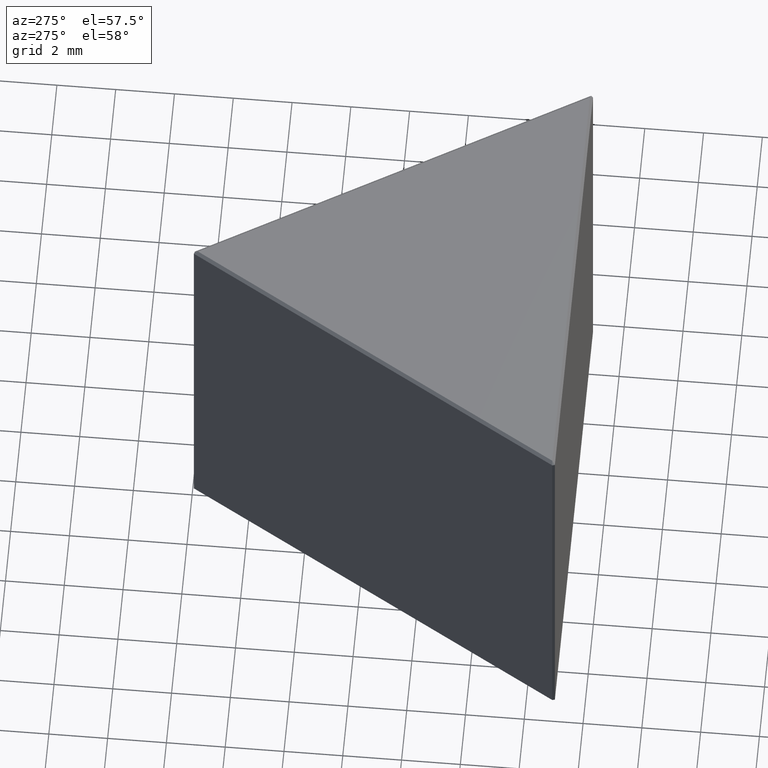
[diagram: clean part render]
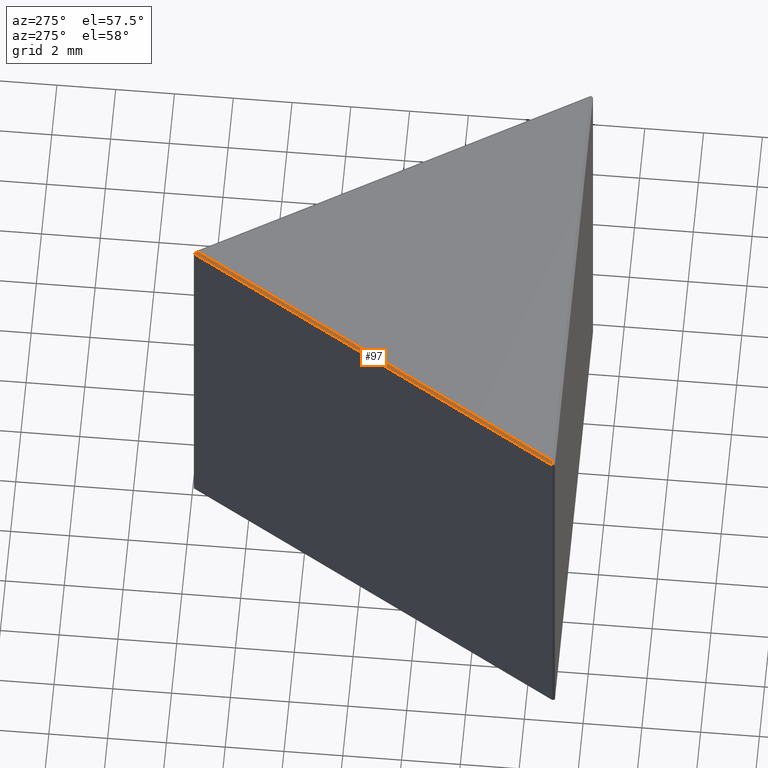
[diagram: same view with one face highlighted and labeled with its STEP entity id]
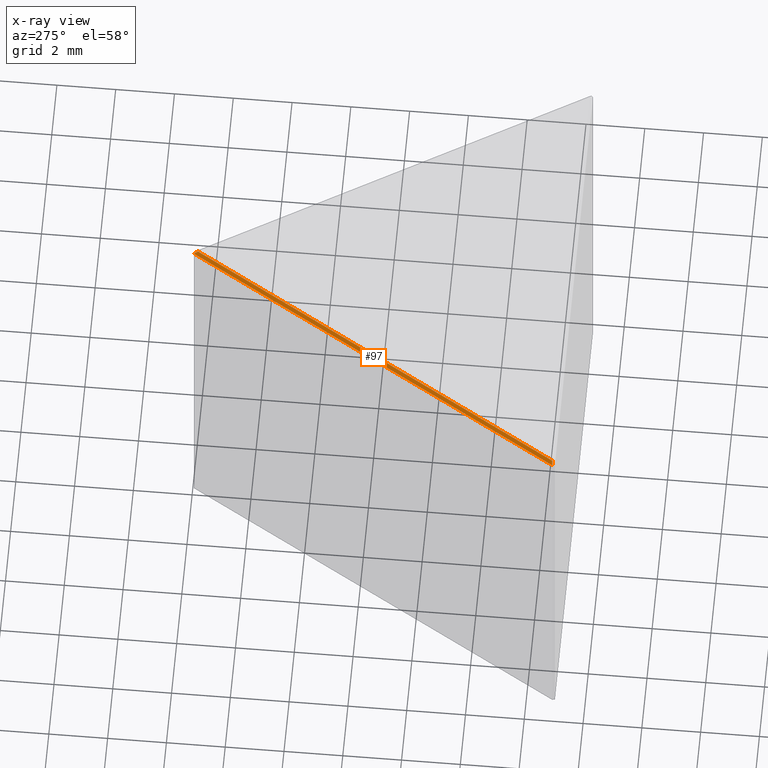
[diagram: x-ray of the same camera — body ghosted, the highlighted face saturated]
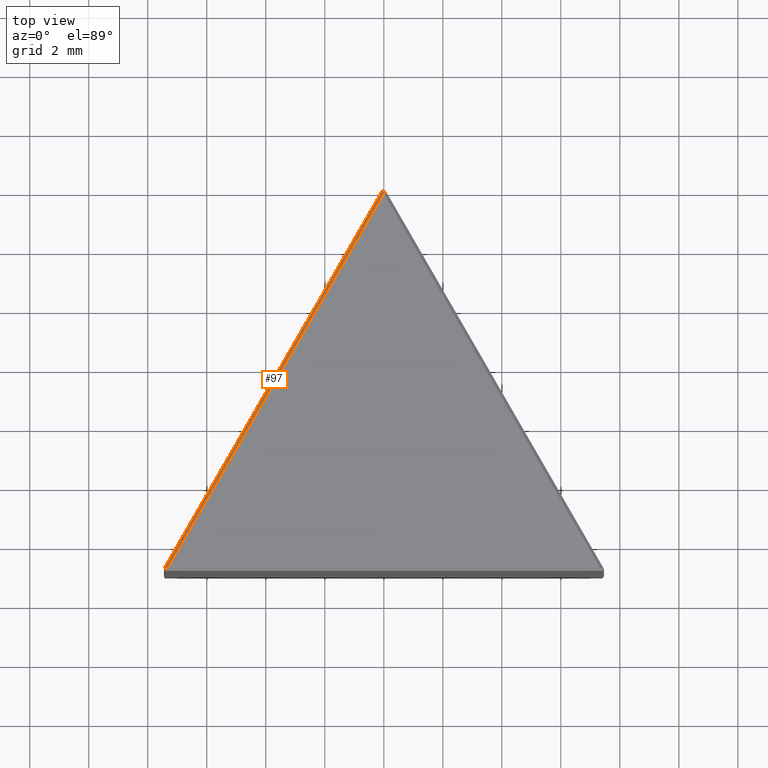
[diagram: same view with one face highlighted and labeled with its STEP entity id]
A machine part, auxiliary view. The second image highlights one B-rep face of the part: STEP entity #97.
The next image is the same camera in x-ray: the body ghosted, the highlighted face saturated — about 0% of this face is hidden behind the body in this view.
A second angle (top view) of the same face is appended — the face is thin or edge-on in the first view.
In plain terms, the highlighted planar face has unit normal (-0.6124, 0.3536, 0.7071).
Its self-contained STEP definition (entity closure, byte-faithful):
#3 = VERTEX_POINT ( 'NONE', #95 ) ;
#20 = PLANE ( 'NONE',  #133 ) ;
#43 = CARTESIAN_POINT ( 'NONE',  ( -0.02886751345948138092, -0.09226497308103918937, 14.92113248654052349 ) ) ;
#60 = DIRECTION ( 'NONE',  ( 0.5000000000000000000, 0.8660254037844385966, -0.000000000000000000 ) ) ;
#63 = VECTOR ( 'NONE', #317, 1000.000000000000000 ) ;
#91 = VERTEX_POINT ( 'NONE', #223 ) ;
#95 = CARTESIAN_POINT ( 'NONE',  ( -7.449999999999999289, -12.90377851638813311, 14.90000000000000391 ) ) ;
#97 = ADVANCED_FACE ( 'NONE', ( #375 ), #20, .T. ) ;
#110 = EDGE_LOOP ( 'NONE', ( #389, #434, #385, #258 ) ) ;
#133 = AXIS2_PLACEMENT_3D ( 'NONE', #139, #297, #60 ) ;
#134 = LINE ( 'NONE', #43, #63 ) ;
#139 = CARTESIAN_POINT ( 'NONE',  ( 0.08660254037843956310, -0.04999999999999752559, 15.00000000000000000 ) ) ;
#151 = VECTOR ( 'NONE', #386, 999.9999999999998863 ) ;
#156 = VERTEX_POINT ( 'NONE', #271 ) ;
#159 = VECTOR ( 'NONE', #396, 1000.000000000000114 ) ;
#167 = EDGE_CURVE ( 'NONE', #3, #156, #490, .T. ) ;
#170 = CARTESIAN_POINT ( 'NONE',  ( 7.002976905571655370E-16, -0.1999999999999912959, 15.00000000000000000 ) ) ;
#192 = EDGE_CURVE ( 'NONE', #3, #91, #272, .T. ) ;
#223 = CARTESIAN_POINT ( 'NONE',  ( -7.326794919243119431, -12.89038105676658219, 15.00000000000000000 ) ) ;
#242 = CARTESIAN_POINT ( 'NONE',  ( -7.413397459621560159, -13.04038105676657544, 15.00000000000000000 ) ) ;
#258 = ORIENTED_EDGE ( 'NONE', *, *, #167, .F. ) ;
#271 = CARTESIAN_POINT ( 'NONE',  ( -0.03660254037844470204, -0.06339745962155758641, 14.90000000000000391 ) ) ;
#272 = LINE ( 'NONE', #427, #151 ) ;
#276 = DIRECTION ( 'NONE',  ( 0.5000000000000001110, 0.8660254037844387076, 0.000000000000000000 ) ) ;
#297 = DIRECTION ( 'NONE',  ( -0.6123724356957973569, 0.3535533905932753962, 0.7071067811865443531 ) ) ;
#303 = VECTOR ( 'NONE', #276, 999.9999999999998863 ) ;
#310 = EDGE_CURVE ( 'NONE', #482, #91, #320, .T. ) ;
#317 = DIRECTION ( 'NONE',  ( 0.2113248654052017617, -0.7886751345948004310, 0.5773502691896373884 ) ) ;
#320 = LINE ( 'NONE', #242, #159 ) ;
#375 = FACE_OUTER_BOUND ( 'NONE', #110, .T. ) ;
#385 = ORIENTED_EDGE ( 'NONE', *, *, #414, .F. ) ;
#386 = DIRECTION ( 'NONE',  ( 0.7736823584807538401, 0.08413109340926433477, 0.6279630301995650088 ) ) ;
#389 = ORIENTED_EDGE ( 'NONE', *, *, #192, .T. ) ;
#396 = DIRECTION ( 'NONE',  ( -0.5000000000000001110, -0.8660254037844385966, 0.000000000000000000 ) ) ;
#414 = EDGE_CURVE ( 'NONE', #156, #482, #134, .T. ) ;
#425 = CARTESIAN_POINT ( 'NONE',  ( 1.355252715606880543E-17, 0.000000000000000000, 14.90000000000000391 ) ) ;
#427 = CARTESIAN_POINT ( 'NONE',  ( -7.449999999999999289, -12.90377851638813311, 14.90000000000000391 ) ) ;
#434 = ORIENTED_EDGE ( 'NONE', *, *, #310, .F. ) ;
#482 = VERTEX_POINT ( 'NONE', #170 ) ;
#490 = LINE ( 'NONE', #425, #303 ) ;